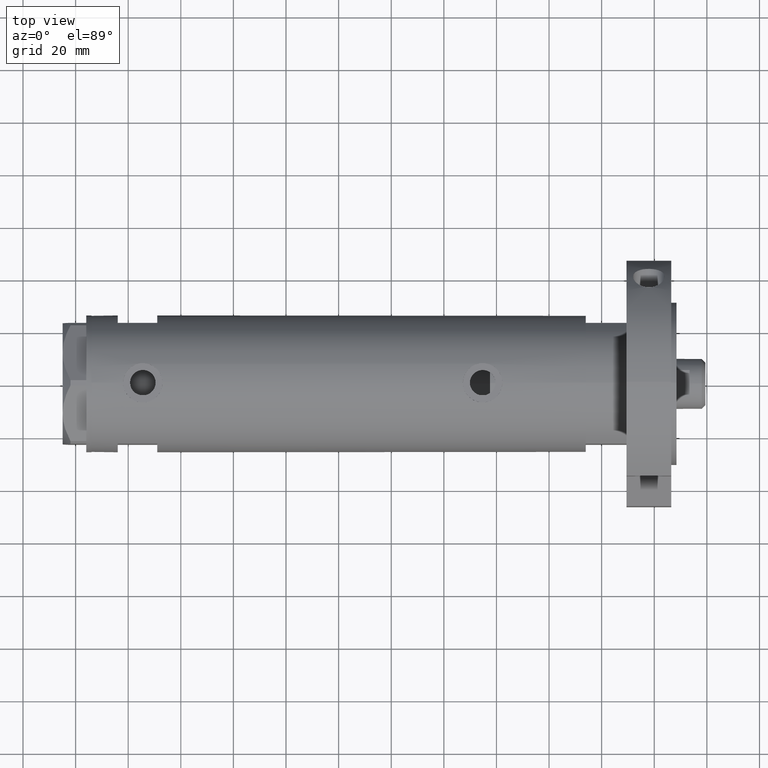
[diagram: clean part render]
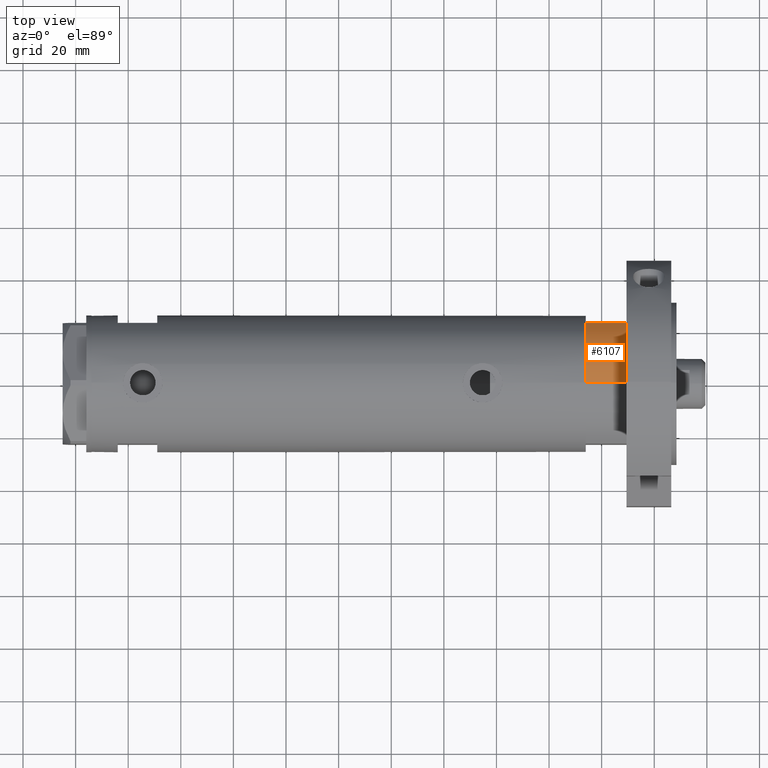
[diagram: same view with one face highlighted and labeled with its STEP entity id]
A machine part, top view. The second image highlights one B-rep face of the part: STEP entity #6107.
In plain terms, the highlighted cylindrical surface (partial cylindrical patch) has radius 26 mm, axis along (-1, -0, 0).
Its self-contained STEP definition (entity closure, byte-faithful):
#55 = DIRECTION ( 'NONE',  ( -0.000000000000000000, -0.000000000000000000, -1.000000000000000000 ) ) ;
#263 = VERTEX_POINT ( 'NONE', #2874 ) ;
#464 = CARTESIAN_POINT ( 'NONE',  ( -12.12435565298215145, 23.00000000000000355, 0.000000000000000000 ) ) ;
#542 = VECTOR ( 'NONE', #3471, 1000.000000000000000 ) ;
#585 = VERTEX_POINT ( 'NONE', #464 ) ;
#877 = AXIS2_PLACEMENT_3D ( 'NONE', #3529, #55, #1077 ) ;
#1074 = CARTESIAN_POINT ( 'NONE',  ( -12.12435565298215145, 23.00000000000000355, 0.000000000000000000 ) ) ;
#1077 = DIRECTION ( 'NONE',  ( -1.000000000000000000, 0.000000000000000000, 0.000000000000000000 ) ) ;
#1229 = EDGE_LOOP ( 'NONE', ( #4544, #4159, #2707, #2270 ) ) ;
#1441 = VERTEX_POINT ( 'NONE', #1872 ) ;
#1513 = DIRECTION ( 'NONE',  ( 1.000000000000000000, 0.000000000000000000, 0.000000000000000000 ) ) ;
#1537 = CYLINDRICAL_SURFACE ( 'NONE', #877, 26.00000000000000355 ) ;
#1703 = VECTOR ( 'NONE', #3599, 1000.000000000000000 ) ;
#1872 = CARTESIAN_POINT ( 'NONE',  ( -26.00000000000000355, 0.000000000000000000, 15.50000000000000000 ) ) ;
#2032 = DIRECTION ( 'NONE',  ( 0.000000000000000000, 0.000000000000000000, 1.000000000000000000 ) ) ;
#2086 = LINE ( 'NONE', #1074, #542 ) ;
#2270 = ORIENTED_EDGE ( 'NONE', *, *, #4094, .T. ) ;
#2707 = ORIENTED_EDGE ( 'NONE', *, *, #3207, .F. ) ;
#2833 = CARTESIAN_POINT ( 'NONE',  ( -12.12435565298214613, 23.00000000000000355, 15.50000000000000000 ) ) ;
#2840 = AXIS2_PLACEMENT_3D ( 'NONE', #4800, #6283, #3924 ) ;
#2874 = CARTESIAN_POINT ( 'NONE',  ( -26.00000000000000355, 0.000000000000000000, 0.000000000000000000 ) ) ;
#2916 = AXIS2_PLACEMENT_3D ( 'NONE', #3104, #2032, #1513 ) ;
#3104 = CARTESIAN_POINT ( 'NONE',  ( 0.000000000000000000, 0.000000000000000000, 0.000000000000000000 ) ) ;
#3119 = EDGE_CURVE ( 'NONE', #1441, #263, #3996, .T. ) ;
#3207 = EDGE_CURVE ( 'NONE', #585, #4954, #2086, .T. ) ;
#3471 = DIRECTION ( 'NONE',  ( -0.000000000000000000, -0.000000000000000000, 1.000000000000000000 ) ) ;
#3529 = CARTESIAN_POINT ( 'NONE',  ( 0.000000000000000000, 0.000000000000000000, 15.50000000000000000 ) ) ;
#3599 = DIRECTION ( 'NONE',  ( -0.000000000000000000, -0.000000000000000000, -1.000000000000000000 ) ) ;
#3924 = DIRECTION ( 'NONE',  ( 1.000000000000000000, 0.000000000000000000, 0.000000000000000000 ) ) ;
#3996 = LINE ( 'NONE', #5010, #1703 ) ;
#4094 = EDGE_CURVE ( 'NONE', #585, #263, #5752, .T. ) ;
#4159 = ORIENTED_EDGE ( 'NONE', *, *, #4858, .F. ) ;
#4544 = ORIENTED_EDGE ( 'NONE', *, *, #3119, .F. ) ;
#4800 = CARTESIAN_POINT ( 'NONE',  ( 0.000000000000000000, 0.000000000000000000, 15.50000000000000000 ) ) ;
#4858 = EDGE_CURVE ( 'NONE', #4954, #1441, #5363, .T. ) ;
#4954 = VERTEX_POINT ( 'NONE', #2833 ) ;
#5010 = CARTESIAN_POINT ( 'NONE',  ( -26.00000000000000355, 0.000000000000000000, 15.50000000000000000 ) ) ;
#5363 = CIRCLE ( 'NONE', #2840, 26.00000000000000355 ) ;
#5752 = CIRCLE ( 'NONE', #2916, 26.00000000000000355 ) ;
#6035 = FACE_OUTER_BOUND ( 'NONE', #1229, .T. ) ;
#6107 = ADVANCED_FACE ( 'NONE', ( #6035 ), #1537, .T. ) ;
#6283 = DIRECTION ( 'NONE',  ( 0.000000000000000000, 0.000000000000000000, 1.000000000000000000 ) ) ;